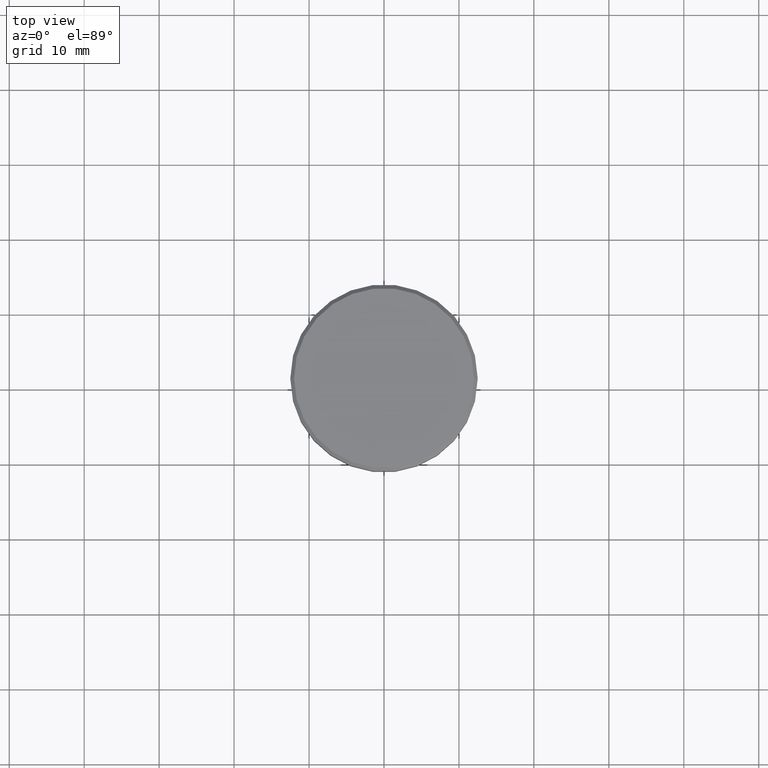
[diagram: clean part render]
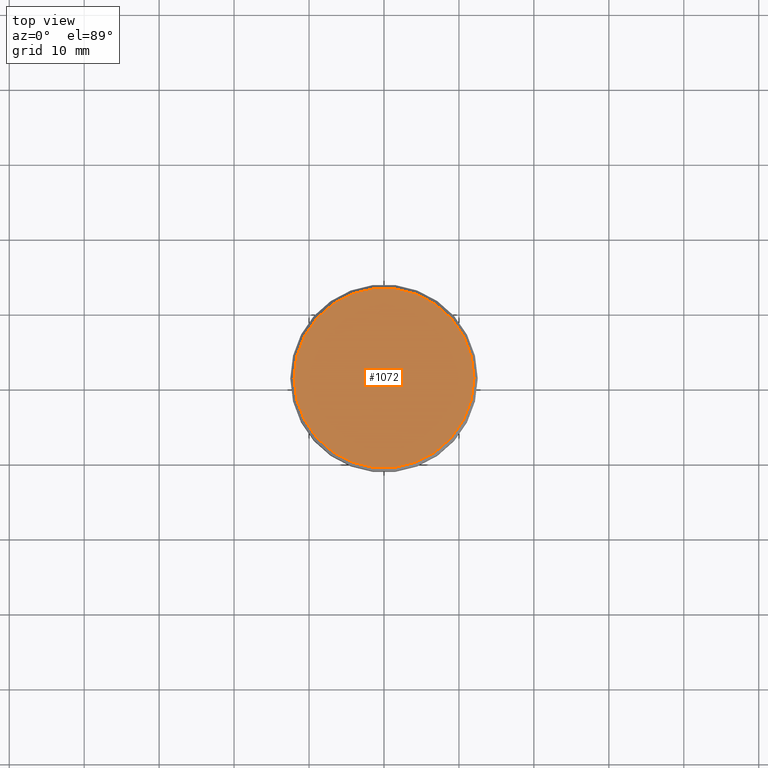
[diagram: same view with one face highlighted and labeled with its STEP entity id]
A machine part, top view. The second image highlights one B-rep face of the part: STEP entity #1072.
In plain terms, the highlighted planar face has unit normal (0, -0, 1).
Its self-contained STEP definition (entity closure, byte-faithful):
#78 = AXIS2_PLACEMENT_3D ( 'NONE', #933, #553, #114 ) ;
#114 = DIRECTION ( 'NONE',  ( 1.000000000000000000, 0.000000000000000000, 0.000000000000000000 ) ) ;
#222 = CARTESIAN_POINT ( 'NONE',  ( 0.000000000000000000, 0.000000000000000000, 0.000000000000000000 ) ) ;
#226 = CARTESIAN_POINT ( 'NONE',  ( 11.99999999999998224, 1.500192328955506354E-15, 0.000000000000000000 ) ) ;
#262 = VERTEX_POINT ( 'NONE', #226 ) ;
#287 = EDGE_CURVE ( 'NONE', #262, #686, #369, .T. ) ;
#352 = DIRECTION ( 'NONE',  ( 1.000000000000000000, 0.000000000000000000, 0.000000000000000000 ) ) ;
#369 = CIRCLE ( 'NONE', #1097, 11.99999999999998224 ) ;
#433 = AXIS2_PLACEMENT_3D ( 'NONE', #222, #585, #981 ) ;
#475 = EDGE_CURVE ( 'NONE', #686, #262, #594, .T. ) ;
#553 = DIRECTION ( 'NONE',  ( -0.000000000000000000, -0.000000000000000000, 1.000000000000000000 ) ) ;
#585 = DIRECTION ( 'NONE',  ( 0.000000000000000000, -0.000000000000000000, 1.000000000000000000 ) ) ;
#594 = CIRCLE ( 'NONE', #78, 11.99999999999998224 ) ;
#686 = VERTEX_POINT ( 'NONE', #754 ) ;
#754 = CARTESIAN_POINT ( 'NONE',  ( -11.99999999999998224, 0.000000000000000000, 0.000000000000000000 ) ) ;
#758 = FACE_OUTER_BOUND ( 'NONE', #885, .T. ) ;
#778 = CARTESIAN_POINT ( 'NONE',  ( 0.000000000000000000, 0.000000000000000000, 0.000000000000000000 ) ) ;
#885 = EDGE_LOOP ( 'NONE', ( #1163, #1158 ) ) ;
#933 = CARTESIAN_POINT ( 'NONE',  ( 0.000000000000000000, 0.000000000000000000, 0.000000000000000000 ) ) ;
#981 = DIRECTION ( 'NONE',  ( 1.000000000000000000, 0.000000000000000000, 0.000000000000000000 ) ) ;
#1072 = ADVANCED_FACE ( 'NONE', ( #758 ), #1130, .T. ) ;
#1097 = AXIS2_PLACEMENT_3D ( 'NONE', #778, #1153, #352 ) ;
#1130 = PLANE ( 'NONE',  #433 ) ;
#1153 = DIRECTION ( 'NONE',  ( -0.000000000000000000, -0.000000000000000000, 1.000000000000000000 ) ) ;
#1158 = ORIENTED_EDGE ( 'NONE', *, *, #287, .T. ) ;
#1163 = ORIENTED_EDGE ( 'NONE', *, *, #475, .T. ) ;